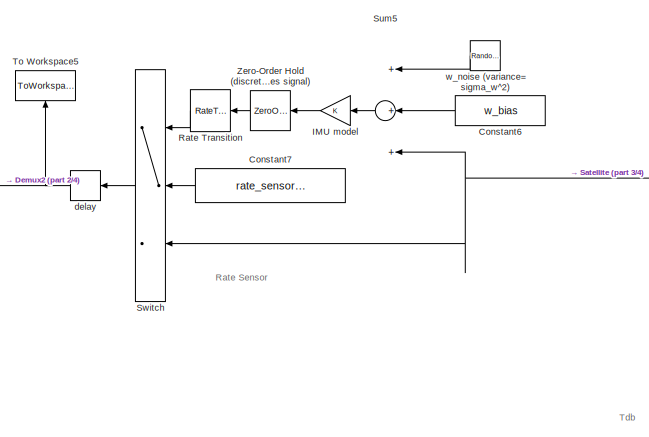
[diagram: root canvas - part 1/4, top center region]
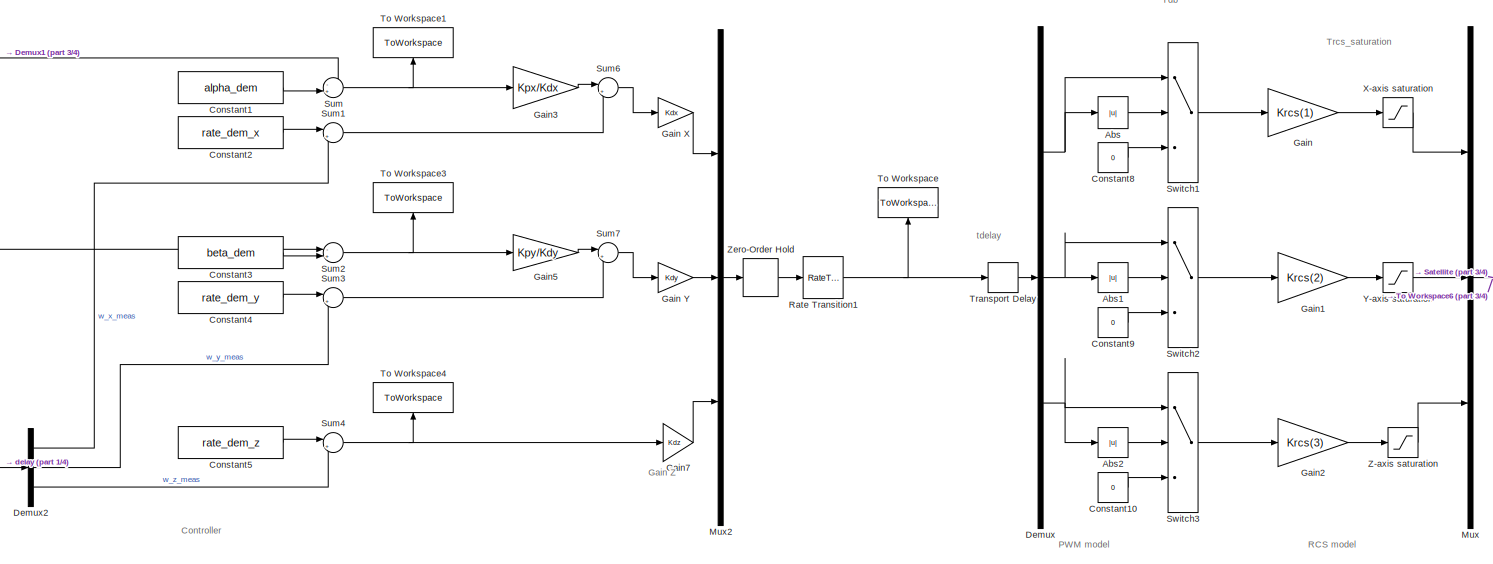
[diagram: root canvas - part 2/4, central region]
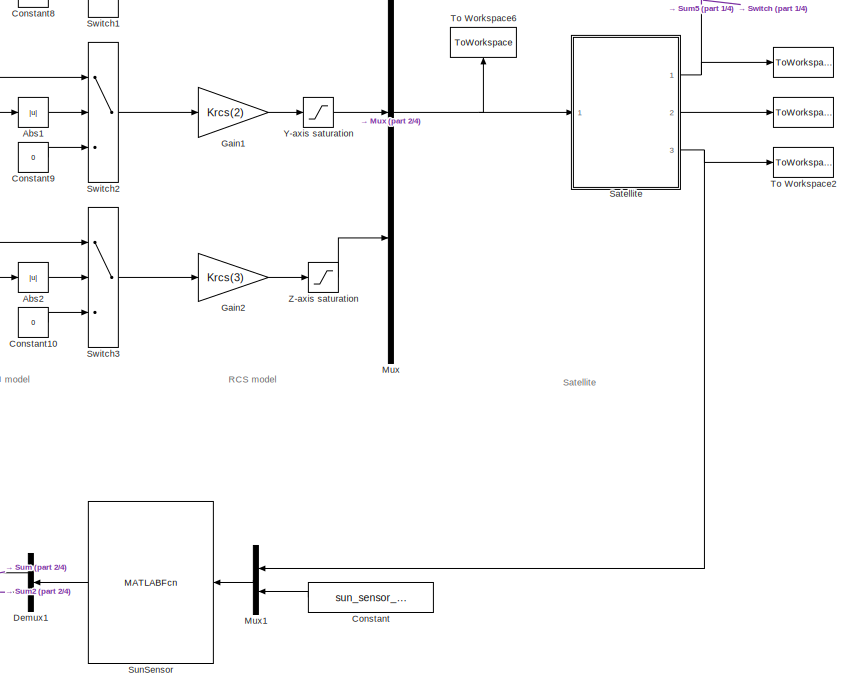
[diagram: root canvas - part 3/4, bottom right region]
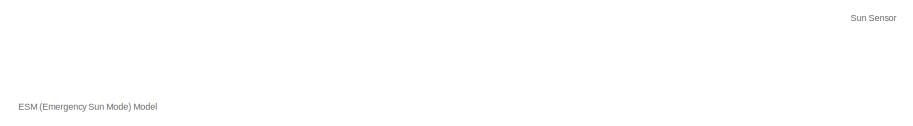
[diagram: root canvas - part 4/4, bottom center region]
MODEL slx_b34d3d185927
KIND model
CONFIG AbsTol = auto
CONFIG EnableMultiTasking = on
CONFIG FixedStep = dt
CONFIG MaxStep = auto
CONFIG MinStep = auto
CONFIG RelTol = 1e-3
CONFIG SampleTimeConstraint = Unconstrained
CONFIG Solver = ode4
CONFIG SolverName = ode4
CONFIG StartTime = 0.0
CONFIG StopTime = tdur
BLOCK [ToWorkspace]  
  MaxDataPoints = inf
  Ports = [1]
  SampleTime = -1
  VariableName = w_bi
BLOCK [ToWorkspace]   
  MaxDataPoints = inf
  Ports = [1]
  SampleTime = -1
  VariableName = q_bi
BLOCK [Abs] Abs
BLOCK [Abs] Abs1
BLOCK [Abs] Abs2
BLOCK [Constant] Constant
  Value = sun_sensor_model_type
BLOCK [Constant] Constant1
  Value = alpha_dem
BLOCK [Constant] Constant10
  Value = 0
BLOCK [Constant] Constant2
  Value = rate_dem_x
BLOCK [Constant] Constant3
  Value = beta_dem
BLOCK [Constant] Constant4
  Value = rate_dem_y
BLOCK [Constant] Constant5
  Value = rate_dem_z
BLOCK [Constant] Constant6
  Value = w_bias
BLOCK [Constant] Constant7
  Value = rate_sensor_model_type
BLOCK [Constant] Constant8
  Value = 0
BLOCK [Constant] Constant9
  Value = 0
BLOCK [Demux] Demux
  Outputs = 3
  Ports = [1, 3]
BLOCK [Demux] Demux1
  DisplayOption = bar
  Outputs = 2
  Ports = [1, 2]
BLOCK [Demux] Demux2
  Outputs = 3
  Ports = [1, 3]
BLOCK [Gain] Gain
  Gain = Krcs(1)
BLOCK [Gain] Gain X
  Gain = Kdx
  OutDataTypeStr = Inherit: Inherit via internal rule
  ParamDataTypeStr = Inherit: Inherit via internal rule
  SaturateOnIntegerOverflow = off
BLOCK [Gain] Gain Y
  Gain = Kdy
  OutDataTypeStr = Inherit: Inherit via internal rule
  ParamDataTypeStr = Inherit: Inherit via internal rule
  SaturateOnIntegerOverflow = off
BLOCK [Gain] Gain1
  Gain = Krcs(2)
BLOCK [Gain] Gain2
  Gain = Krcs(3)
BLOCK [Gain] Gain3
  Gain = Kpx/Kdx
  OutDataTypeStr = Inherit: Inherit via internal rule
  ParamDataTypeStr = Inherit: Inherit via internal rule
  SaturateOnIntegerOverflow = off
BLOCK [Gain] Gain5
  Gain = Kpy/Kdy
  OutDataTypeStr = Inherit: Inherit via internal rule
  ParamDataTypeStr = Inherit: Inherit via internal rule
  SaturateOnIntegerOverflow = off
BLOCK [Gain] Gain7
  Gain = Kdz
BLOCK [Gain] IMU model
BLOCK [Mux] Mux
  DisplayOption = bar
  Inputs = 3
  Ports = [3, 1]
BLOCK [Mux] Mux1
  DisplayOption = bar
  Inputs = 2
  Ports = [2, 1]
BLOCK [Mux] Mux2
  DisplayOption = bar
  Inputs = 3
  Ports = [3, 1]
BLOCK [RateTransition] Rate Transition
BLOCK [RateTransition] Rate Transition1
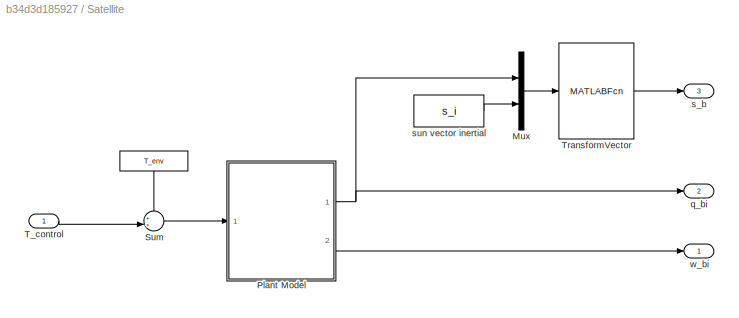
BLOCK [SubSystem] Satellite
  Ports = [1, 3]
  RequestExecContextInheritance = off
  Variant = off
BLOCK [Constant] Satellite/ 
  Value = T_env
BLOCK [Mux] Satellite/Mux
  DisplayOption = bar
  Inputs = 2
  Ports = [2, 1]
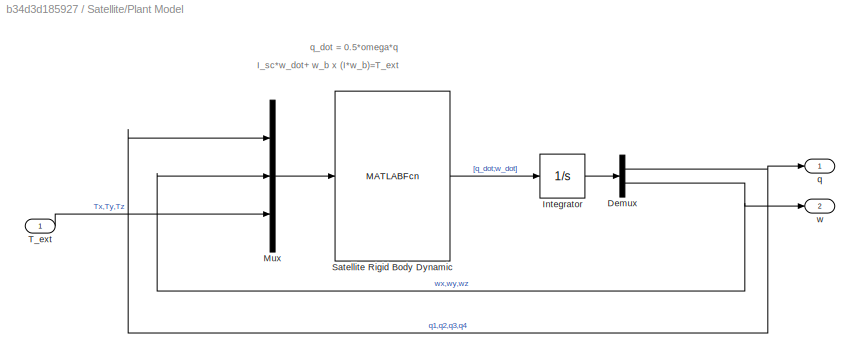
BLOCK [SubSystem] Satellite/Plant Model
  Ports = [1, 2]
  RequestExecContextInheritance = off
  Variant = off
BLOCK [Demux] Satellite/Plant Model/Demux
  DisplayOption = bar
  Outputs = [4 3]
  Ports = [1, 2]
BLOCK [Integrator] Satellite/Plant Model/Integrator
  InitialCondition = [q_bi0;w_bi0]
  Ports = [1, 1]
BLOCK [Mux] Satellite/Plant Model/Mux
  DisplayOption = bar
  Inputs = [4 3 3]
  Ports = [3, 1]
BLOCK [MATLABFcn] Satellite/Plant Model/Satellite Rigid Body Dynamic
  MATLABFcn = satellite_dynamics
  OutputDimensions = 7
  Ports = [1, 1]
BLOCK [Inport] Satellite/Plant Model/T_ext
  IconDisplay = Port number
BLOCK [Outport] Satellite/Plant Model/q
  IconDisplay = Port number
BLOCK [Outport] Satellite/Plant Model/w
  IconDisplay = Port number
  Port = 2
BLOCK [Sum] Satellite/Sum
  IconShape = round
  InputSameDT = off
  Inputs = ++|
  OutDataTypeStr = Inherit: Inherit via internal rule
  Ports = [2, 1]
  SaturateOnIntegerOverflow = off
BLOCK [Inport] Satellite/T_control
  IconDisplay = Port number
BLOCK [MATLABFcn] Satellite/TransformVector
  MATLABFcn = transform_vector
  Ports = [1, 1]
BLOCK [Outport] Satellite/q_bi
  IconDisplay = Port number
  Port = 2
BLOCK [Outport] Satellite/s_b
  IconDisplay = Port number
  Port = 3
BLOCK [Constant] Satellite/sun vector inertial
  Value = s_i
BLOCK [Outport] Satellite/w_bi
  IconDisplay = Port number
BLOCK [Sum] Sum
  IconShape = round
  InputSameDT = off
  Inputs = -+|
  OutDataTypeStr = Inherit: Inherit via internal rule
  Ports = [2, 1]
BLOCK [Sum] Sum1
  IconShape = round
  InputSameDT = off
  Inputs = |+-
  OutDataTypeStr = Inherit: Inherit via internal rule
  Ports = [2, 1]
BLOCK [Sum] Sum2
  IconShape = round
  InputSameDT = off
  Inputs = -+|
  OutDataTypeStr = Inherit: Inherit via internal rule
  Ports = [2, 1]
BLOCK [Sum] Sum3
  IconShape = round
  InputSameDT = off
  Inputs = |+-
  OutDataTypeStr = Inherit: Inherit via internal rule
  Ports = [2, 1]
BLOCK [Sum] Sum4
  IconShape = round
  InputSameDT = off
  Inputs = |+-
  OutDataTypeStr = Inherit: Inherit via internal rule
  Ports = [2, 1]
BLOCK [Sum] Sum5
  InputSameDT = off
  Inputs = +++
  OutDataTypeStr = Inherit: Inherit via internal rule
  Ports = [3, 1]
BLOCK [Sum] Sum6
  IconShape = round
  InputSameDT = off
  Inputs = |++
  OutDataTypeStr = Inherit: Inherit via internal rule
  Ports = [2, 1]
  SaturateOnIntegerOverflow = off
BLOCK [Sum] Sum7
  IconShape = round
  InputSameDT = off
  Inputs = |++
  OutDataTypeStr = Inherit: Inherit via internal rule
  Ports = [2, 1]
  SaturateOnIntegerOverflow = off
BLOCK [MATLABFcn] SunSensor
  MATLABFcn = sun_sensor
  OutputDimensions = 2
  Ports = [1, 1]
BLOCK [Switch] Switch
  InputSameDT = off
  Threshold = 2
BLOCK [Switch] Switch1
  InputSameDT = off
  Threshold = Tdb(1)
BLOCK [Switch] Switch2
  InputSameDT = off
  Threshold = Tdb(2)
BLOCK [Switch] Switch3
  InputSameDT = off
  Threshold = Tdb(3)
BLOCK [ToWorkspace] To Workspace
  MaxDataPoints = inf
  Ports = [1]
  SampleTime = -1
  VariableName = T_dem
BLOCK [ToWorkspace] To Workspace1
  MaxDataPoints = inf
  Ports = [1]
  SampleTime = -1
  VariableName = alpha_error
BLOCK [ToWorkspace] To Workspace2
  MaxDataPoints = inf
  Ports = [1]
  SampleTime = -1
  VariableName = s_b
BLOCK [ToWorkspace] To Workspace3
  MaxDataPoints = inf
  Ports = [1]
  SampleTime = -1
  VariableName = beta_error
BLOCK [ToWorkspace] To Workspace4
  MaxDataPoints = inf
  Ports = [1]
  SampleTime = -1
  VariableName = wz_error
BLOCK [ToWorkspace] To Workspace5
  MaxDataPoints = inf
  Ports = [1]
  SampleTime = -1
  VariableName = w_bi_meas
BLOCK [ToWorkspace] To Workspace6
  MaxDataPoints = inf
  Ports = [1]
  SampleTime = -1
  VariableName = T_rcs
BLOCK [TransportDelay] Transport Delay
  DelayTime = tdelay
  Ports = [1, 1]
BLOCK [Saturate] X-axis saturation
  InputPortMap = u0
  LowerLimit = -Trcs_saturation(1)
  Ports = [1, 1]
  UpperLimit = +Trcs_saturation(1)
BLOCK [Saturate] Y-axis saturation
  InputPortMap = u0
  LowerLimit = -Trcs_saturation(2)
  Ports = [1, 1]
  UpperLimit = +Trcs_saturation(2)
BLOCK [Saturate] Z-axis saturation
  InputPortMap = u0
  LowerLimit = -Trcs_saturation(3)
  Ports = [1, 1]
  UpperLimit = +Trcs_saturation(3)
BLOCK [ZeroOrderHold] Zero-Order Hold
  SampleTime = ta
BLOCK [ZeroOrderHold] Zero-Order Hold (discretetizes signal)
  SampleTime = ta
BLOCK [Memory] delay
BLOCK [RandomNumber] w_noise (variance=sigma_w^2)
  SampleTime = 0
  Variance = sigma_w^2
ANNOTATION (root): Controller
ANNOTATION (root): ESM (Emergency Sun Mode) Model
ANNOTATION (root): Gain Z
ANNOTATION (root): PWM model
ANNOTATION (root): RCS model
ANNOTATION (root): Rate Sensor
ANNOTATION (root): Satellite
ANNOTATION (root): Sun Sensor
ANNOTATION (root): Tdb
ANNOTATION (root): Trcs_saturation
ANNOTATION (root): tdelay
ANNOTATION Satellite/Plant Model: I_sc*w_dot+ w_b x (I*w_b)=T_ext
ANNOTATION Satellite/Plant Model: q_dot = 0.5*omega*q
LINE Abs1:1 -> Switch2:2
LINE Abs2:1 -> Switch3:2
LINE Abs:1 -> Switch1:2
LINE Constant10:1 -> Switch3:3
LINE Constant1:1 -> Sum:2
LINE Constant2:1 -> Sum1:1
LINE Constant3:1 -> Sum2:2
LINE Constant4:1 -> Sum3:1
LINE Constant5:1 -> Sum4:1
LINE Constant6:1 -> Sum5:2
LINE Constant7:1 -> Switch:2
LINE Constant8:1 -> Switch1:3
LINE Constant9:1 -> Switch2:3
LINE Constant:1 -> Mux1:2
LINE Demux1:1 -> Sum:1
LINE Demux1:2 -> Sum2:1
LINE Demux2:1 -> Sum1:2
LINE Demux2:2 -> Sum3:2
LINE Demux2:3 -> Sum4:2
NET Demux:1 -> Abs:1, Switch1:1
NET Demux:2 -> Abs1:1, Switch2:1
NET Demux:3 -> Abs2:1, Switch3:1
LINE Gain X:1 -> Mux2:1
LINE Gain Y:1 -> Mux2:2
LINE Gain1:1 -> Y-axis saturation:1
LINE Gain2:1 -> Z-axis saturation:1
LINE Gain3:1 -> Sum6:1
LINE Gain5:1 -> Sum7:1
LINE Gain7:1 -> Mux2:3
LINE Gain:1 -> X-axis saturation:1
LINE IMU model:1 -> Zero-Order Hold (discretetizes signal):1
LINE Mux1:1 -> SunSensor:1
LINE Mux2:1 -> Zero-Order Hold:1
NET Mux:1 -> Satellite:1, To Workspace6:1
NET Rate Transition1:1 -> To Workspace:1, Transport Delay:1
LINE Rate Transition:1 -> Switch:1
LINE Satellite/ :1 -> Satellite/Sum:1
LINE Satellite/Mux:1 -> Satellite/TransformVector:1
NET Satellite/Plant Model/Demux:1 -> Satellite/Plant Model/Mux:1, Satellite/Plant Model/q:1
NET Satellite/Plant Model/Demux:2 -> Satellite/Plant Model/Mux:2, Satellite/Plant Model/w:1
LINE Satellite/Plant Model/Integrator:1 -> Satellite/Plant Model/Demux:1
LINE Satellite/Plant Model/Mux:1 -> Satellite/Plant Model/Satellite Rigid Body Dynamic:1
LINE Satellite/Plant Model/Satellite Rigid Body Dynamic:1 -> Satellite/Plant Model/Integrator:1
LINE Satellite/Plant Model/T_ext:1 -> Satellite/Plant Model/Mux:3
NET Satellite/Plant Model:1 -> Satellite/Mux:1, Satellite/q_bi:1
LINE Satellite/Plant Model:2 -> Satellite/w_bi:1
LINE Satellite/Sum:1 -> Satellite/Plant Model:1
LINE Satellite/T_control:1 -> Satellite/Sum:2
LINE Satellite/TransformVector:1 -> Satellite/s_b:1
LINE Satellite/sun vector inertial:1 -> Satellite/Mux:2
NET Satellite:1 ->  :1, Sum5:3, Switch:3
LINE Satellite:2 ->   :1
NET Satellite:3 -> Mux1:1, To Workspace2:1
LINE Sum1:1 -> Sum6:2
NET Sum2:1 -> Gain5:1, To Workspace3:1
LINE Sum3:1 -> Sum7:2
NET Sum4:1 -> Gain7:1, To Workspace4:1
LINE Sum5:1 -> IMU model:1
LINE Sum6:1 -> Gain X:1
LINE Sum7:1 -> Gain Y:1
NET Sum:1 -> Gain3:1, To Workspace1:1
LINE SunSensor:1 -> Demux1:1
LINE Switch1:1 -> Gain:1
LINE Switch2:1 -> Gain1:1
LINE Switch3:1 -> Gain2:1
LINE Switch:1 -> delay:1
LINE Transport Delay:1 -> Demux:1
LINE X-axis saturation:1 -> Mux:1
LINE Y-axis saturation:1 -> Mux:2
LINE Z-axis saturation:1 -> Mux:3
LINE Zero-Order Hold (discretetizes signal):1 -> Rate Transition:1
LINE Zero-Order Hold:1 -> Rate Transition1:1
NET delay:1 -> Demux2:1, To Workspace5:1
LINE w_noise (variance=sigma_w^2):1 -> Sum5:1
note: NET lines group one-source signal fan-out (src -> all destinations, sorted); 1:1 wires keep LINE
